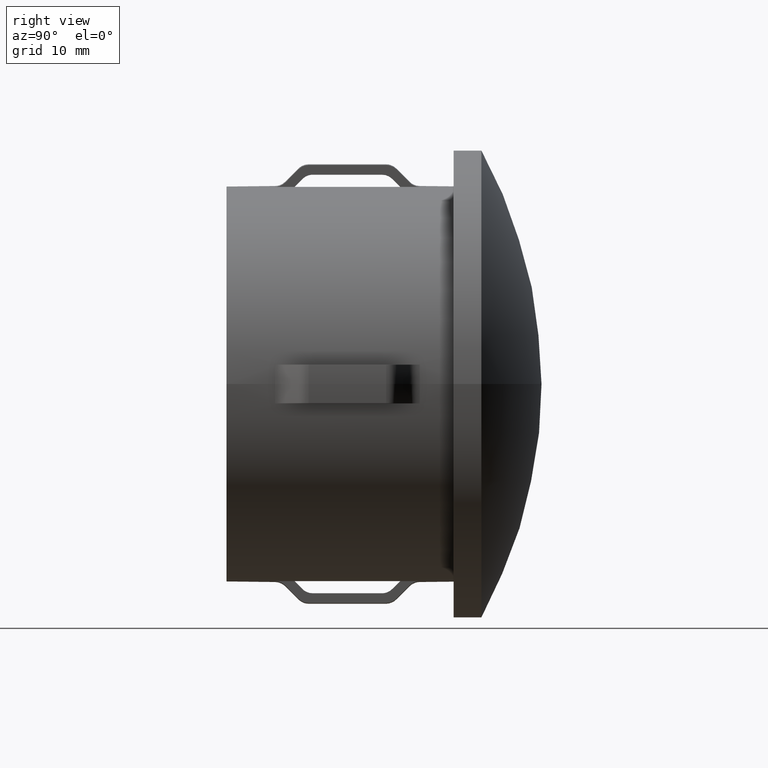
[diagram: clean part render]
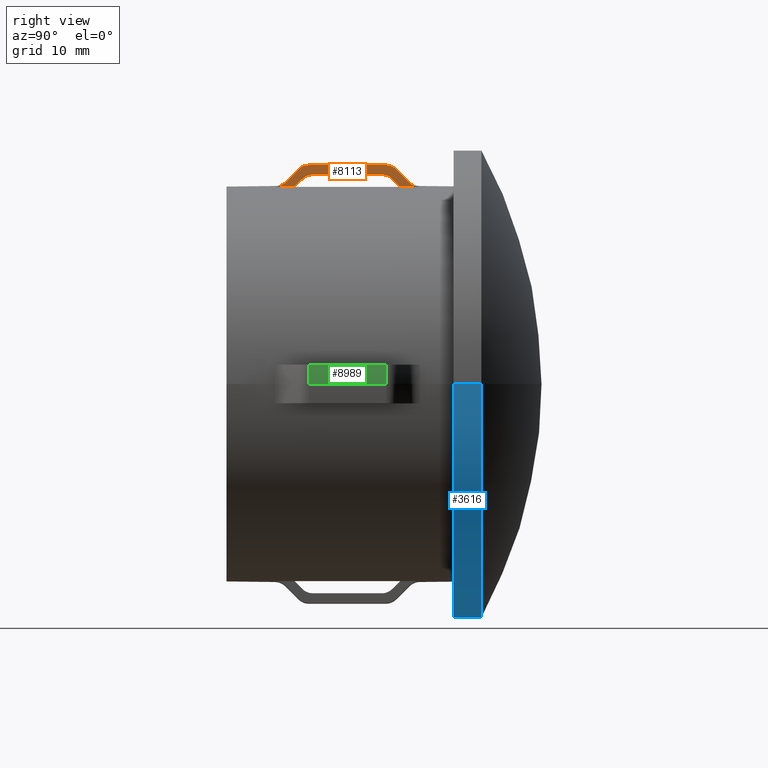
[diagram: same view with three faces highlighted in distinct colors, each labeled with its STEP entity id]
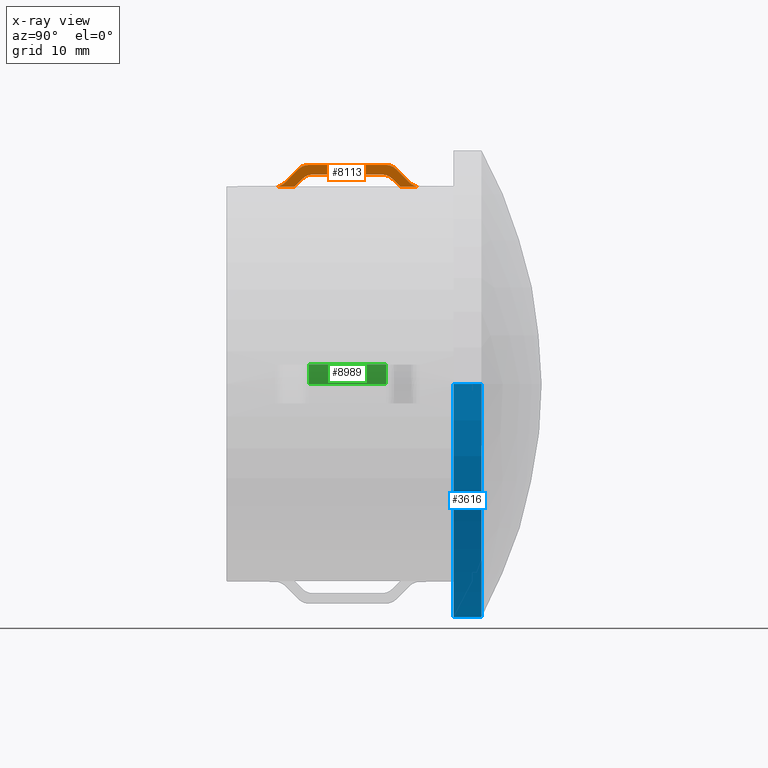
[diagram: x-ray of the same camera — body ghosted, the three highlighted faces saturated]
A machine part, right view with three faces highlighted in distinct colors.
The next image is the same camera in x-ray (body ghosted, the three faces saturated) — at least one of them is partly hidden behind the body in this view.
Their STEP definitions:

[orange] entity #8113 — the highlighted planar face has unit normal (-1, 0, 0).
#109 = CARTESIAN_POINT ( 'NONE',  ( 2.000000000000002700, 7.584568097044280100, 22.35926237560226700 ) ) ;
#113 = CARTESIAN_POINT ( 'NONE',  ( 2.000000000000002200, 16.29090730707217100, 21.65785077056358400 ) ) ;
#116 = VERTEX_POINT ( 'NONE', #12042 ) ;
#122 = VECTOR ( 'NONE', #10512, 1000.000000000000000 ) ;
#735 = EDGE_CURVE ( 'NONE', #11979, #5451, #2821, .T. ) ;
#740 = ORIENTED_EDGE ( 'NONE', *, *, #6352, .T. ) ;
#744 = EDGE_LOOP ( 'NONE', ( #7584, #3235, #8903, #740, #2835, #6570, #13124, #14022, #9063, #7254, #6809, #870, #10961, #3663 ) ) ;
#784 = CARTESIAN_POINT ( 'NONE',  ( 2.000000000000002200, 17.96446609406726600, 20.40220576310324700 ) ) ;
#849 = CARTESIAN_POINT ( 'NONE',  ( 2.000000000000002200, 5.929834406796378400, 20.71110602943935700 ) ) ;
#862 = EDGE_CURVE ( 'NONE', #7235, #2772, #4873, .T. ) ;
#870 = ORIENTED_EDGE ( 'NONE', *, *, #6693, .T. ) ;
#877 = CARTESIAN_POINT ( 'NONE',  ( 2.000000000000002200, 8.507359312880781800, 22.66191739460727200 ) ) ;
#915 = VECTOR ( 'NONE', #2123, 1000.000000000000000 ) ;
#988 = CARTESIAN_POINT ( 'NONE',  ( 2.000000000000001300, 6.006508710180853000, 20.77442059055730200 ) ) ;
#1050 = CARTESIAN_POINT ( 'NONE',  ( 2.000000000000002200, 17.52021443081365600, 20.84854892013913400 ) ) ;
#1103 = CARTESIAN_POINT ( 'NONE',  ( 2.000000000000002200, 17.87744737577660100, 20.48964158968356100 ) ) ;
#1110 = CARTESIAN_POINT ( 'NONE',  ( 2.000000000000002700, 17.08454930607624800, 21.28616650510683400 ) ) ;
#1222 = CARTESIAN_POINT ( 'NONE',  ( 2.000000000000002700, 16.50735931288072000, 22.66191739460727200 ) ) ;
#1260 = CARTESIAN_POINT ( 'NONE',  ( 2.000000000000002200, 16.48764408892267100, 21.61801323809704900 ) ) ;
#1382 = CARTESIAN_POINT ( 'NONE',  ( 2.000000000000002200, 18.91627443841342100, 20.86677831920776100 ) ) ;
#1567 = CARTESIAN_POINT ( 'NONE',  ( 2.000000000000002200, 18.00211543520875800, 21.78498539532193200 ) ) ;
#1661 = CARTESIAN_POINT ( 'NONE',  ( 2.000000000000002700, 16.50735931288072000, 22.66191739460727200 ) ) ;
#1833 = EDGE_CURVE ( 'NONE', #14182, #11244, #5207, .T. ) ;
#1880 = CARTESIAN_POINT ( 'NONE',  ( 2.000000000000002200, 7.620824840368065600, 20.97545064178190800 ) ) ;
#1903 = EDGE_CURVE ( 'NONE', #11032, #9178, #11241, .T. ) ;
#2123 = DIRECTION ( 'NONE',  ( -2.449293598294745400E-017, -1.000000000000000000, -0.0000000000000000000 ) ) ;
#2133 = CARTESIAN_POINT ( 'NONE',  ( 2.000000000000001800, 6.075378797541310900, 20.84360699211369200 ) ) ;
#2136 = CARTESIAN_POINT ( 'NONE',  ( 2.000000000000002200, 8.823055726104058700, 21.65785077056360200 ) ) ;
#2196 = CARTESIAN_POINT ( 'NONE',  ( 2.000000000000002200, 17.70340201594607900, 20.66450535715426900 ) ) ;
#2238 = CARTESIAN_POINT ( 'NONE',  ( 2.000000000000001800, 8.000143765847004900, 21.35645116154486100 ) ) ;
#2301 = CARTESIAN_POINT ( 'NONE',  ( 2.000000000000002200, 17.96446609406726600, 20.40220576310324700 ) ) ;
#2356 = CARTESIAN_POINT ( 'NONE',  ( 2.000000000000002200, 8.115845375148314400, 22.62318409287582500 ) ) ;
#2364 = CARTESIAN_POINT ( 'NONE',  ( 2.000000000000002200, 16.09314575050768100, 21.65785077056358400 ) ) ;
#2772 = VERTEX_POINT ( 'NONE', #12387 ) ;
#2814 = CARTESIAN_POINT ( 'NONE',  ( 2.000000000000002200, 20.00000000000000000, 20.40220576310324700 ) ) ;
#2821 = B_SPLINE_CURVE_WITH_KNOTS ( 'NONE', 3,
 ( #2133, #988, #849, #5447, #5542, #13477, #11043, #5352 ),
 .UNSPECIFIED., .F., .F.,
 ( 4, 2, 2, 4 ),
 ( 0.008371280253840771400, 0.008664066613654278200, 0.008956852973467785100, 0.009542425693094802200 ),
 .UNSPECIFIED. ) ;
#2835 = ORIENTED_EDGE ( 'NONE', *, *, #13640, .T. ) ;
#2938 = CARTESIAN_POINT ( 'NONE',  ( 2.000000000000001800, 7.050252531694249000, 20.40220576310324700 ) ) ;
#3139 = CARTESIAN_POINT ( 'NONE',  ( 2.000000000000001800, 7.110554088309486400, 20.46279572193697400 ) ) ;
#3235 = ORIENTED_EDGE ( 'NONE', *, *, #14576, .T. ) ;
#3261 = B_SPLINE_CURVE_WITH_KNOTS ( 'NONE', 3,
 ( #12358, #2238, #10169, #4297, #14803, #11286, #2136, #11236 ),
 .UNSPECIFIED., .F., .F.,
 ( 4, 2, 2, 4 ),
 ( 0.009173001103736894100, 0.009759328643642897100, 0.01005249241359589900, 0.01034565618354890000 ),
 .UNSPECIFIED. ) ;
#3356 = CARTESIAN_POINT ( 'NONE',  ( 2.000000000000002700, 16.75839936802222100, 21.50515582855075500 ) ) ;
#3493 = CARTESIAN_POINT ( 'NONE',  ( 1.999999999999998700, 20.00000000000000000, -3.358301057634789700E-016 ) ) ;
#3640 = CARTESIAN_POINT ( 'NONE',  ( 2.000000000000002200, 18.89320887236172200, 20.88994947086406400 ) ) ;
#3663 = ORIENTED_EDGE ( 'NONE', *, *, #1833, .F. ) ;
#3876 = AXIS2_PLACEMENT_3D ( 'NONE', #3493, #11486, #4644 ) ;
#3911 = CARTESIAN_POINT ( 'NONE',  ( 2.000000000000002700, 19.51756015860040300, 20.47882990030004500 ) ) ;
#4092 = CARTESIAN_POINT ( 'NONE',  ( 2.000000000000001800, 7.080403149440475600, 20.43250090231390500 ) ) ;
#4095 = CARTESIAN_POINT ( 'NONE',  ( 2.000000000000001800, 7.050252531694249000, 20.40220576310324700 ) ) ;
#4297 = CARTESIAN_POINT ( 'NONE',  ( 2.000000000000002200, 8.438045186904325600, 21.58082483954195000 ) ) ;
#4463 = CARTESIAN_POINT ( 'NONE',  ( 2.000000000000001800, 6.144575493948710900, 20.91312044881427900 ) ) ;
#4504 = CARTESIAN_POINT ( 'NONE',  ( 2.000000000000002200, 8.507359312880781800, 22.66191739460727200 ) ) ;
#4509 = CARTESIAN_POINT ( 'NONE',  ( 2.000000000000002200, 17.00919439343564900, 21.34835540812167000 ) ) ;
#4644 = DIRECTION ( 'NONE',  ( 1.679150528817396300E-016, 0.0000000000000000000, 1.000000000000000000 ) ) ;
#4683 = CARTESIAN_POINT ( 'NONE',  ( 2.000000000000002200, 17.42872396607268100, 22.36069470489101400 ) ) ;
#4702 = PLANE ( 'NONE',  #3876 ) ;
#4730 = CARTESIAN_POINT ( 'NONE',  ( 2.000000000000002700, 16.70284708308865600, 22.66191739460723300 ) ) ;
#4797 = CARTESIAN_POINT ( 'NONE',  ( 2.000000000000002200, 17.56801948466059900, 22.22083610714601000 ) ) ;
#4873 = LINE ( 'NONE', #13905, #8682 ) ;
#4883 = CARTESIAN_POINT ( 'NONE',  ( 2.000000000000001800, 6.075378797541310900, 20.84360699211369200 ) ) ;
#4989 = CARTESIAN_POINT ( 'NONE',  ( 2.000000000000002200, 18.87014313181276700, 20.91312044881430800 ) ) ;
#5070 = EDGE_CURVE ( 'NONE', #12774, #11979, #11325, .T. ) ;
#5152 = VECTOR ( 'NONE', #5956, 1000.000000000000000 ) ;
#5198 = B_SPLINE_CURVE_WITH_KNOTS ( 'NONE', 3,
 ( #2814, #10772, #6171, #10917, #3911, #6225, #6274, #12068 ),
 .UNSPECIFIED., .F., .F.,
 ( 4, 2, 2, 4 ),
 ( 0.008509443781205213600, 0.008802269037219470300, 0.009095094293233728700, 0.009680744805262252500 ),
 .UNSPECIFIED. ) ;
#5202 = VERTEX_POINT ( 'NONE', #14333 ) ;
#5207 = LINE ( 'NONE', #11177, #915 ) ;
#5352 = CARTESIAN_POINT ( 'NONE',  ( 2.000000000000001800, 5.014718625761436700, 20.40220576310324700 ) ) ;
#5398 = VERTEX_POINT ( 'NONE', #4095 ) ;
#5447 = CARTESIAN_POINT ( 'NONE',  ( 2.000000000000001300, 5.766771221952217800, 20.60159769045123600 ) ) ;
#5451 = VERTEX_POINT ( 'NONE', #8697 ) ;
#5465 = B_SPLINE_CURVE_WITH_KNOTS ( 'NONE', 3,
 ( #2364, #113, #1260, #3356, #11352, #4509, #1110, #6933 ),
 .UNSPECIFIED., .F., .F.,
 ( 4, 2, 2, 4 ),
 ( 0.009128291611664674000, 0.009714465693556009800, 0.01000755273450167600, 0.01030063977544734200 ),
 .UNSPECIFIED. ) ;
#5542 = CARTESIAN_POINT ( 'NONE',  ( 2.000000000000001800, 5.680815094391809900, 20.55538203870454300 ) ) ;
#5613 = CARTESIAN_POINT ( 'NONE',  ( 2.000000000000001800, 6.098444187348103000, 20.86677831920777500 ) ) ;
#5804 = CARTESIAN_POINT ( 'NONE',  ( 2.000000000000002700, 20.00000000000000000, 22.66191739460727200 ) ) ;
#5808 = CARTESIAN_POINT ( 'NONE',  ( 2.000000000000002700, 7.750848718991102600, 22.47140790669738000 ) ) ;
#5823 = B_SPLINE_CURVE_WITH_KNOTS ( 'NONE', 3,
 ( #2938, #4092, #3139, #13371, #12103, #1880, #7679 ),
 .UNSPECIFIED., .F., .F.,
 ( 4, 3, 4 ),
 ( 0.003052204991603253700, 0.003180430166961613100, 0.004201297012915290000 ),
 .UNSPECIFIED. ) ;
#5956 = DIRECTION ( 'NONE',  ( -2.449293598294745400E-017, -1.000000000000000000, -0.0000000000000000000 ) ) ;
#5985 = FACE_OUTER_BOUND ( 'NONE', #744, .T. ) ;
#6171 = CARTESIAN_POINT ( 'NONE',  ( 2.000000000000002700, 19.80280675609176200, 20.41206944872258700 ) ) ;
#6225 = CARTESIAN_POINT ( 'NONE',  ( 2.000000000000002700, 19.24337864287317500, 20.59289333808242300 ) ) ;
#6274 = CARTESIAN_POINT ( 'NONE',  ( 2.000000000000002200, 19.07709071892139400, 20.70522342380310100 ) ) ;
#6352 = EDGE_CURVE ( 'NONE', #9178, #11281, #11386, .T. ) ;
#6570 = ORIENTED_EDGE ( 'NONE', *, *, #5070, .T. ) ;
#6693 = EDGE_CURVE ( 'NONE', #2772, #13987, #5465, .T. ) ;
#6809 = ORIENTED_EDGE ( 'NONE', *, *, #862, .T. ) ;
#6829 = CARTESIAN_POINT ( 'NONE',  ( 2.000000000000001800, 6.075378797541310900, 20.84360699211369200 ) ) ;
#6871 = CARTESIAN_POINT ( 'NONE',  ( 2.000000000000002200, 17.33701544440578200, 21.03258113547450800 ) ) ;
#6933 = CARTESIAN_POINT ( 'NONE',  ( 2.000000000000002200, 17.15380592228750000, 21.21660286089844400 ) ) ;
#6975 = CARTESIAN_POINT ( 'NONE',  ( 2.000000000000002200, 17.56801948466059900, 22.22083610714601000 ) ) ;
#7172 = CARTESIAN_POINT ( 'NONE',  ( 2.000000000000002200, 18.43616006591596000, 21.34908356169734800 ) ) ;
#7235 = VERTEX_POINT ( 'NONE', #11371 ) ;
#7254 = ORIENTED_EDGE ( 'NONE', *, *, #8064, .T. ) ;
#7270 = CARTESIAN_POINT ( 'NONE',  ( 2.000000000000002200, 18.93933982822023400, 20.84360699211365300 ) ) ;
#7566 = CARTESIAN_POINT ( 'NONE',  ( 2.000000000000002200, 17.15380592228750000, 21.21660286089844400 ) ) ;
#7584 = ORIENTED_EDGE ( 'NONE', *, *, #13095, .T. ) ;
#7679 = CARTESIAN_POINT ( 'NONE',  ( 2.000000000000002200, 7.860912703474030000, 21.21660286089849400 ) ) ;
#7815 = CARTESIAN_POINT ( 'NONE',  ( 2.000000000000002200, 20.00000000000000000, 20.40220576310324700 ) ) ;
#7905 = CARTESIAN_POINT ( 'NONE',  ( 2.000000000000002200, 7.012603190552773900, 21.78498539532194300 ) ) ;
#7992 = CARTESIAN_POINT ( 'NONE',  ( 2.000000000000002200, 17.79042598295834300, 20.57707475457038300 ) ) ;
#8064 = EDGE_CURVE ( 'NONE', #116, #7235, #3261, .T. ) ;
#8113 = ADVANCED_FACE ( 'NONE', ( #5985 ), #4702, .F. ) ;
#8508 = B_SPLINE_CURVE_WITH_KNOTS ( 'NONE', 3,
 ( #9200, #6871, #1050, #2196, #7992, #1103, #2301 ),
 .UNSPECIFIED., .F., .F.,
 ( 4, 3, 4 ),
 ( 0.002401413104325963000, 0.003180430114856548900, 0.003550505141012638900 ),
 .UNSPECIFIED. ) ;
#8682 = VECTOR ( 'NONE', #12795, 1000.000000000000000 ) ;
#8697 = CARTESIAN_POINT ( 'NONE',  ( 2.000000000000001800, 5.014718625761436700, 20.40220576310324700 ) ) ;
#8903 = ORIENTED_EDGE ( 'NONE', *, *, #1903, .T. ) ;
#9063 = ORIENTED_EDGE ( 'NONE', *, *, #11879, .T. ) ;
#9149 = CARTESIAN_POINT ( 'NONE',  ( 2.000000000000002700, 8.310355224789866200, 22.66191739460725100 ) ) ;
#9178 = VERTEX_POINT ( 'NONE', #1661 ) ;
#9200 = CARTESIAN_POINT ( 'NONE',  ( 2.000000000000002200, 17.15380592228750000, 21.21660286089844400 ) ) ;
#9293 = CARTESIAN_POINT ( 'NONE',  ( 2.000000000000002200, 20.00000000000000000, 20.40220576310324700 ) ) ;
#9854 = EDGE_CURVE ( 'NONE', #5398, #5451, #13571, .T. ) ;
#10169 = CARTESIAN_POINT ( 'NONE',  ( 2.000000000000001800, 8.166681752869475700, 21.46794898791232600 ) ) ;
#10194 = CARTESIAN_POINT ( 'NONE',  ( 2.000000000000001800, 6.578558559845546000, 21.34908356169733800 ) ) ;
#10244 = CARTESIAN_POINT ( 'NONE',  ( 2.000000000000002200, 17.56801948466059900, 22.22083610714601000 ) ) ;
#10336 = B_SPLINE_CURVE_WITH_KNOTS ( 'NONE', 3,
 ( #7270, #1382, #3640, #4989, #7172, #1567, #4797 ),
 .UNSPECIFIED., .F., .F.,
 ( 4, 3, 4 ),
 ( 0.004396343306202797100, 0.004494426444014829400, 0.006339865655612606800 ),
 .UNSPECIFIED. ) ;
#10512 = DIRECTION ( 'NONE',  ( -2.449293598294745400E-017, -1.000000000000000000, -0.0000000000000000000 ) ) ;
#10772 = CARTESIAN_POINT ( 'NONE',  ( 2.000000000000001300, 19.90173428581017500, 20.40220576310319000 ) ) ;
#10917 = CARTESIAN_POINT ( 'NONE',  ( 2.000000000000001800, 19.61130445110919500, 20.45038570081282700 ) ) ;
#10961 = ORIENTED_EDGE ( 'NONE', *, *, #12126, .T. ) ;
#11032 = VERTEX_POINT ( 'NONE', #6975 ) ;
#11043 = CARTESIAN_POINT ( 'NONE',  ( 2.000000000000001800, 5.210409835604890500, 20.40220576310320800 ) ) ;
#11177 = CARTESIAN_POINT ( 'NONE',  ( 2.000000000000002200, 20.00000000000000000, 20.40220576310324700 ) ) ;
#11236 = CARTESIAN_POINT ( 'NONE',  ( 1.999999999999941200, 8.921572875253817300, 21.65785077056359900 ) ) ;
#11241 = B_SPLINE_CURVE_WITH_KNOTS ( 'NONE', 3,
 ( #10244, #4683, #11520, #11468, #4730, #1222 ),
 .UNSPECIFIED., .F., .F.,
 ( 4, 2, 4 ),
 ( 0.008548706479392853200, 0.009134532108197347700, 0.009720357737001840400 ),
 .UNSPECIFIED. ) ;
#11244 = VERTEX_POINT ( 'NONE', #784 ) ;
#11281 = VERTEX_POINT ( 'NONE', #877 ) ;
#11286 = CARTESIAN_POINT ( 'NONE',  ( 2.000000000000002200, 8.725776602241186500, 21.64819746106340800 ) ) ;
#11325 = B_SPLINE_CURVE_WITH_KNOTS ( 'NONE', 3,
 ( #12530, #7905, #10194, #4463, #12478, #5613, #6829 ),
 .UNSPECIFIED., .F., .F.,
 ( 4, 3, 4 ),
 ( 0.002648986992580280000, 0.004494426273991014100, 0.004592509415513429900 ),
 .UNSPECIFIED. ) ;
#11352 = CARTESIAN_POINT ( 'NONE',  ( 2.000000000000002200, 16.84624992441868600, 21.45793771639353800 ) ) ;
#11371 = CARTESIAN_POINT ( 'NONE',  ( 1.999999999999941200, 8.921572875253817300, 21.65785077056359900 ) ) ;
#11386 = LINE ( 'NONE', #5804, #122 ) ;
#11468 = CARTESIAN_POINT ( 'NONE',  ( 2.000000000000002200, 16.89958806233800100, 22.62297271921372400 ) ) ;
#11486 = DIRECTION ( 'NONE',  ( -1.000000000000000000, 2.449293598294745400E-017, 1.679150528817396300E-016 ) ) ;
#11520 = CARTESIAN_POINT ( 'NONE',  ( 2.000000000000003100, 17.26426614596958200, 22.47115701120893400 ) ) ;
#11531 = CARTESIAN_POINT ( 'NONE',  ( 2.000000000000002200, 7.446699141100957300, 22.22083610714603500 ) ) ;
#11879 = EDGE_CURVE ( 'NONE', #5398, #116, #5823, .T. ) ;
#11979 = VERTEX_POINT ( 'NONE', #4883 ) ;
#12042 = CARTESIAN_POINT ( 'NONE',  ( 2.000000000000002200, 7.860912703474030000, 21.21660286089849400 ) ) ;
#12068 = CARTESIAN_POINT ( 'NONE',  ( 2.000000000000002200, 18.93933982822023400, 20.84360699211365300 ) ) ;
#12103 = CARTESIAN_POINT ( 'NONE',  ( 2.000000000000001800, 7.380755060382429500, 20.73428041770122800 ) ) ;
#12126 = EDGE_CURVE ( 'NONE', #13987, #11244, #8508, .T. ) ;
#12358 = CARTESIAN_POINT ( 'NONE',  ( 2.000000000000002200, 7.860912703474030000, 21.21660286089849400 ) ) ;
#12387 = CARTESIAN_POINT ( 'NONE',  ( 2.000000000000002200, 16.09314575050768100, 21.65785077056358400 ) ) ;
#12478 = CARTESIAN_POINT ( 'NONE',  ( 2.000000000000001800, 6.121509753399779500, 20.88994947086405700 ) ) ;
#12530 = CARTESIAN_POINT ( 'NONE',  ( 2.000000000000002200, 7.446699141100957300, 22.22083610714603500 ) ) ;
#12702 = B_SPLINE_CURVE_WITH_KNOTS ( 'NONE', 3,
 ( #4504, #9149, #2356, #5808, #109, #13823 ),
 .UNSPECIFIED., .F., .F.,
 ( 4, 2, 4 ),
 ( 0.008537508476758423600, 0.009123193019095239200, 0.009708877561432053100 ),
 .UNSPECIFIED. ) ;
#12774 = VERTEX_POINT ( 'NONE', #11531 ) ;
#12795 = DIRECTION ( 'NONE',  ( 2.904862207577519400E-015, 1.000000000000000000, 0.0000000000000000000 ) ) ;
#13095 = EDGE_CURVE ( 'NONE', #14182, #5202, #5198, .T. ) ;
#13124 = ORIENTED_EDGE ( 'NONE', *, *, #735, .T. ) ;
#13371 = CARTESIAN_POINT ( 'NONE',  ( 2.000000000000001800, 7.140705344057871600, 20.49309022617566000 ) ) ;
#13477 = CARTESIAN_POINT ( 'NONE',  ( 2.000000000000001800, 5.409761750437891000, 20.44217957024221000 ) ) ;
#13571 = LINE ( 'NONE', #9293, #5152 ) ;
#13640 = EDGE_CURVE ( 'NONE', #11281, #12774, #12702, .T. ) ;
#13823 = CARTESIAN_POINT ( 'NONE',  ( 2.000000000000002200, 7.446699141100957300, 22.22083610714603500 ) ) ;
#13905 = CARTESIAN_POINT ( 'NONE',  ( 2.000000000000002700, 30.10000000000000100, 21.65785077056359900 ) ) ;
#13987 = VERTEX_POINT ( 'NONE', #7566 ) ;
#14022 = ORIENTED_EDGE ( 'NONE', *, *, #9854, .F. ) ;
#14182 = VERTEX_POINT ( 'NONE', #7815 ) ;
#14333 = CARTESIAN_POINT ( 'NONE',  ( 2.000000000000002200, 18.93933982822023400, 20.84360699211365300 ) ) ;
#14576 = EDGE_CURVE ( 'NONE', #5202, #11032, #10336, .T. ) ;
#14803 = CARTESIAN_POINT ( 'NONE',  ( 2.000000000000002200, 8.533650821411148600, 21.60992406000939100 ) ) ;

[blue] entity #3616 — the highlighted cylindrical surface (partial cylindrical patch) has radius 24.15 mm, axis along (-0, -1, -0).
#164 = CYLINDRICAL_SURFACE ( 'NONE', #3007, 24.15000000000001600 ) ;
#526 = DIRECTION ( 'NONE',  ( -2.904862207577519400E-015, -1.000000000000000000, -0.0000000000000000000 ) ) ;
#707 = CARTESIAN_POINT ( 'NONE',  ( -1.080313149379137300E-014, 26.38101757611403600, 0.0000000000000000000 ) ) ;
#879 = FACE_OUTER_BOUND ( 'NONE', #9235, .T. ) ;
#1204 = EDGE_CURVE ( 'NONE', #11715, #9534, #12204, .T. ) ;
#1848 = EDGE_CURVE ( 'NONE', #2216, #9401, #5925, .T. ) ;
#1984 = DIRECTION ( 'NONE',  ( -2.904862207577519400E-015, -1.000000000000000000, -0.0000000000000000000 ) ) ;
#2216 = VERTEX_POINT ( 'NONE', #9859 ) ;
#3007 = AXIS2_PLACEMENT_3D ( 'NONE', #14289, #526, #7447 ) ;
#3616 = ADVANCED_FACE ( 'NONE', ( #879 ), #164, .T. ) ;
#4193 = DIRECTION ( 'NONE',  ( 1.000000000000000000, -2.873247993336324200E-015, 0.0000000000000000000 ) ) ;
#4334 = ORIENTED_EDGE ( 'NONE', *, *, #14196, .F. ) ;
#4780 = CIRCLE ( 'NONE', #7201, 24.15000000000001300 ) ;
#4911 = CARTESIAN_POINT ( 'NONE',  ( 24.15000000000001600, 30.09999999999993400, 0.0000000000000000000 ) ) ;
#5406 = DIRECTION ( 'NONE',  ( -2.904862207577519400E-015, -1.000000000000000000, -0.0000000000000000000 ) ) ;
#5925 = LINE ( 'NONE', #11266, #14171 ) ;
#6002 = CIRCLE ( 'NONE', #12846, 24.15000000000002000 ) ;
#6382 = CARTESIAN_POINT ( 'NONE',  ( -1.916436701262193500E-014, 23.50265883778223500, 0.0000000000000000000 ) ) ;
#6537 = CARTESIAN_POINT ( 'NONE',  ( -24.14999999999991300, 23.50265883778230600, 2.957522019940861500E-015 ) ) ;
#7201 = AXIS2_PLACEMENT_3D ( 'NONE', #707, #1984, #8794 ) ;
#7248 = CARTESIAN_POINT ( 'NONE',  ( 24.15000000000000600, 23.50265883778216700, 0.0000000000000000000 ) ) ;
#7372 = CARTESIAN_POINT ( 'NONE',  ( 24.15000000000000200, 26.38101757611396900, 0.0000000000000000000 ) ) ;
#7447 = DIRECTION ( 'NONE',  ( 1.000000000000000000, -2.873247993336324600E-015, 0.0000000000000000000 ) ) ;
#8472 = ORIENTED_EDGE ( 'NONE', *, *, #1204, .T. ) ;
#8794 = DIRECTION ( 'NONE',  ( 1.000000000000000000, -2.873247993336325000E-015, 0.0000000000000000000 ) ) ;
#9235 = EDGE_LOOP ( 'NONE', ( #10998, #13530, #8472, #4334 ) ) ;
#9401 = VERTEX_POINT ( 'NONE', #6537 ) ;
#9534 = VERTEX_POINT ( 'NONE', #7248 ) ;
#9859 = CARTESIAN_POINT ( 'NONE',  ( -24.14999999999989200, 26.38101757611410700, 2.957522019940859500E-015 ) ) ;
#10235 = VECTOR ( 'NONE', #11049, 1000.000000000000000 ) ;
#10998 = ORIENTED_EDGE ( 'NONE', *, *, #1848, .F. ) ;
#11049 = DIRECTION ( 'NONE',  ( -2.904862207577519400E-015, -1.000000000000000000, -0.0000000000000000000 ) ) ;
#11266 = CARTESIAN_POINT ( 'NONE',  ( -24.15000000000001600, 30.10000000000007200, 2.957522019940859900E-015 ) ) ;
#11715 = VERTEX_POINT ( 'NONE', #7372 ) ;
#11832 = EDGE_CURVE ( 'NONE', #2216, #11715, #4780, .T. ) ;
#12204 = LINE ( 'NONE', #4911, #10235 ) ;
#12846 = AXIS2_PLACEMENT_3D ( 'NONE', #6382, #5406, #4193 ) ;
#13530 = ORIENTED_EDGE ( 'NONE', *, *, #11832, .T. ) ;
#14171 = VECTOR ( 'NONE', #14649, 1000.000000000000000 ) ;
#14196 = EDGE_CURVE ( 'NONE', #9401, #9534, #6002, .T. ) ;
#14289 = CARTESIAN_POINT ( 'NONE',  ( 0.0000000000000000000, 30.10000000000000100, 0.0000000000000000000 ) ) ;
#14649 = DIRECTION ( 'NONE',  ( -2.904862207577519400E-015, -1.000000000000000000, -0.0000000000000000000 ) ) ;

[green] entity #8989 — the highlighted cylindrical surface (partial cylindrical patch) has radius 22.75 mm, axis along (-0, -1, -0).
#32 = VERTEX_POINT ( 'NONE', #11960 ) ;
#36 = DIRECTION ( 'NONE',  ( -2.904862207577519400E-015, -1.000000000000000000, -0.0000000000000000000 ) ) ;
#125 = LINE ( 'NONE', #4528, #10342 ) ;
#668 = CARTESIAN_POINT ( 'NONE',  ( 0.0000000000000000000, 30.10000000000000100, 0.0000000000000000000 ) ) ;
#1004 = VERTEX_POINT ( 'NONE', #7461 ) ;
#1945 = DIRECTION ( 'NONE',  ( -2.904862207577519400E-015, -1.000000000000000000, -0.0000000000000000000 ) ) ;
#3254 = DIRECTION ( 'NONE',  ( -2.904862207577519400E-015, -1.000000000000000000, -0.0000000000000000000 ) ) ;
#3584 = ORIENTED_EDGE ( 'NONE', *, *, #10107, .T. ) ;
#4528 = CARTESIAN_POINT ( 'NONE',  ( 22.66191739460735700, 20.00000000000000000, 1.999999999999994000 ) ) ;
#4849 = AXIS2_PLACEMENT_3D ( 'NONE', #668, #3254, #11197 ) ;
#5328 = LINE ( 'NONE', #11854, #14276 ) ;
#5355 = CARTESIAN_POINT ( 'NONE',  ( -3.948474823319314900E-014, 16.50735931288078400, 0.0000000000000000000 ) ) ;
#5587 = CARTESIAN_POINT ( 'NONE',  ( 22.66191739460735700, 16.50735931288072000, 1.999999999999994000 ) ) ;
#5688 = DIRECTION ( 'NONE',  ( 1.000000000000000000, -2.897560091741472400E-015, 0.0000000000000000000 ) ) ;
#6745 = CARTESIAN_POINT ( 'NONE',  ( -6.272364589381328600E-014, 8.507359312880787200, 0.0000000000000000000 ) ) ;
#6948 = CIRCLE ( 'NONE', #11359, 22.75000000000006000 ) ;
#7461 = CARTESIAN_POINT ( 'NONE',  ( 22.74999999999999600, 8.507359312880719700, 0.0000000000000000000 ) ) ;
#8061 = CARTESIAN_POINT ( 'NONE',  ( 22.66191739460735700, 8.507359312880781800, 1.999999999999994000 ) ) ;
#8399 = EDGE_LOOP ( 'NONE', ( #10855, #10217, #3584, #12454 ) ) ;
#8703 = DIRECTION ( 'NONE',  ( 1.000000000000000000, -2.897560091741474800E-015, 0.0000000000000000000 ) ) ;
#8786 = CYLINDRICAL_SURFACE ( 'NONE', #4849, 22.75000000000005000 ) ;
#8989 = ADVANCED_FACE ( 'NONE', ( #9328 ), #8786, .T. ) ;
#9041 = AXIS2_PLACEMENT_3D ( 'NONE', #5355, #1945, #8703 ) ;
#9328 = FACE_OUTER_BOUND ( 'NONE', #8399, .T. ) ;
#10107 = EDGE_CURVE ( 'NONE', #10203, #11363, #125, .T. ) ;
#10123 = EDGE_CURVE ( 'NONE', #1004, #11363, #6948, .T. ) ;
#10203 = VERTEX_POINT ( 'NONE', #5587 ) ;
#10217 = ORIENTED_EDGE ( 'NONE', *, *, #14217, .T. ) ;
#10342 = VECTOR ( 'NONE', #12545, 1000.000000000000000 ) ;
#10855 = ORIENTED_EDGE ( 'NONE', *, *, #11812, .F. ) ;
#11197 = DIRECTION ( 'NONE',  ( 1.000000000000000000, -2.897560091741473600E-015, 0.0000000000000000000 ) ) ;
#11359 = AXIS2_PLACEMENT_3D ( 'NONE', #6745, #36, #5688 ) ;
#11363 = VERTEX_POINT ( 'NONE', #8061 ) ;
#11812 = EDGE_CURVE ( 'NONE', #32, #1004, #5328, .T. ) ;
#11854 = CARTESIAN_POINT ( 'NONE',  ( 22.75000000000005000, 30.09999999999993700, 0.0000000000000000000 ) ) ;
#11960 = CARTESIAN_POINT ( 'NONE',  ( 22.75000000000000000, 16.50735931288071600, 0.0000000000000000000 ) ) ;
#12454 = ORIENTED_EDGE ( 'NONE', *, *, #10123, .F. ) ;
#12545 = DIRECTION ( 'NONE',  ( -2.449293598294745400E-017, -1.000000000000000000, -0.0000000000000000000 ) ) ;
#13011 = DIRECTION ( 'NONE',  ( -2.904862207577519400E-015, -1.000000000000000000, -0.0000000000000000000 ) ) ;
#13889 = CIRCLE ( 'NONE', #9041, 22.75000000000003900 ) ;
#14217 = EDGE_CURVE ( 'NONE', #32, #10203, #13889, .T. ) ;
#14276 = VECTOR ( 'NONE', #13011, 1000.000000000000000 ) ;